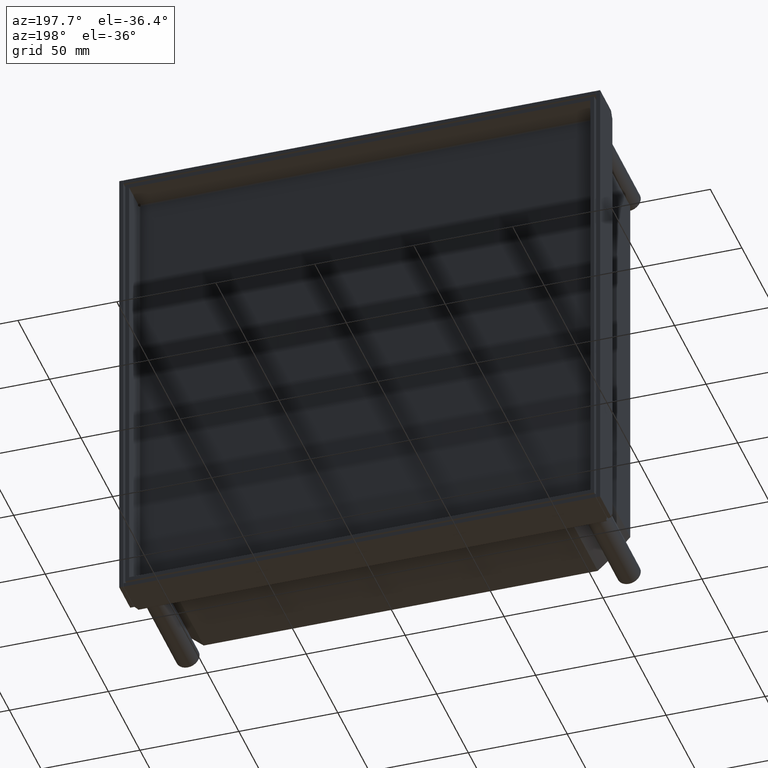
[diagram: clean part render]
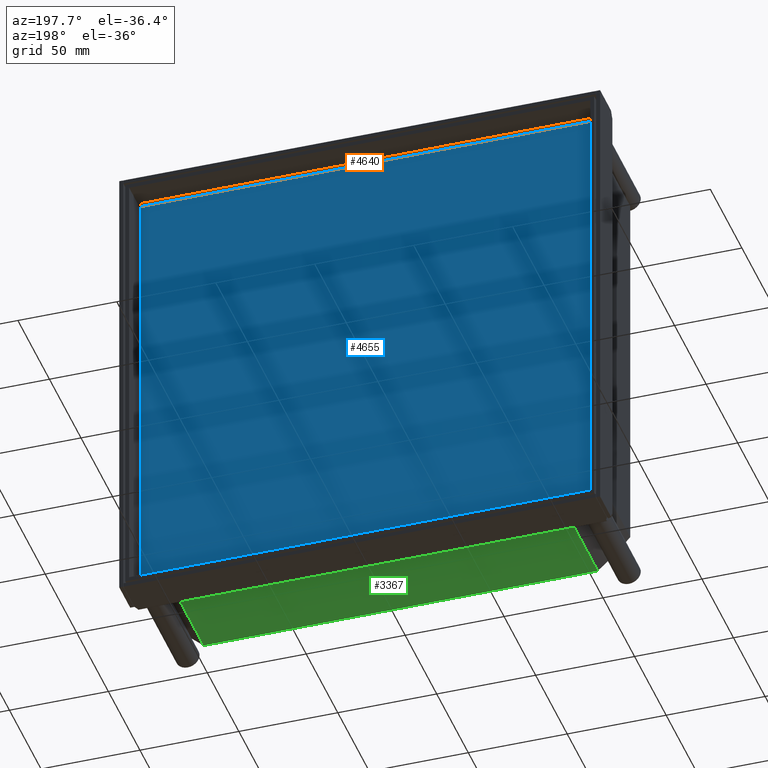
[diagram: same view with three faces highlighted in distinct colors, each labeled with its STEP entity id]
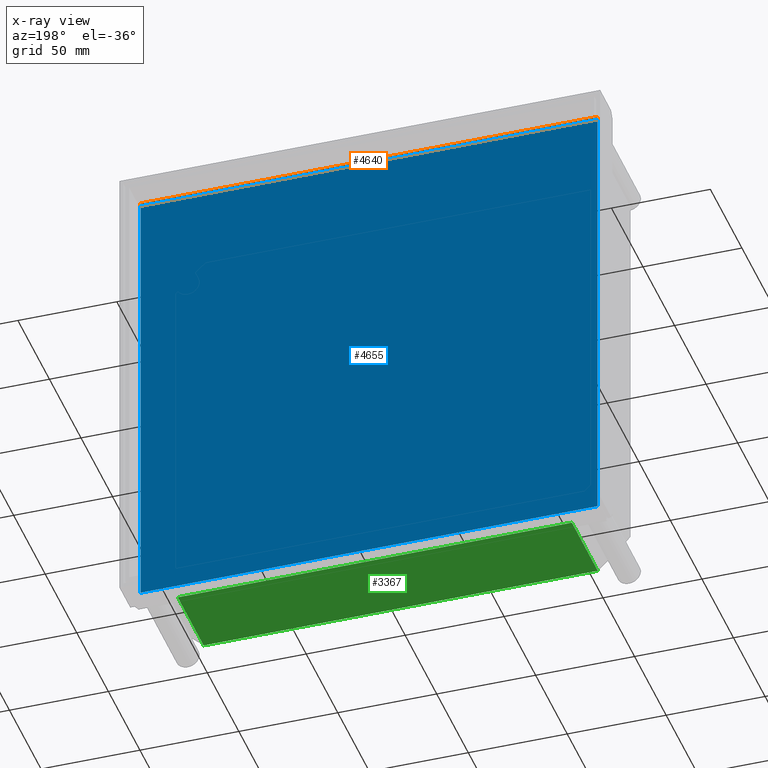
[diagram: x-ray of the same camera — body ghosted, the three highlighted faces saturated]
A machine part, auxiliary view with three faces highlighted in distinct colors.
The next image is the same camera in x-ray (body ghosted, the three faces saturated) — at least one of them is partly hidden behind the body in this view.
Their STEP definitions:

[orange] entity #4640 — the highlighted cylindrical surface (edge-blend (fillet) strip) has radius 1 mm, axis along (1, 0, 0).
#4050=DIRECTION('',(1.E0,0.E0,0.E0));
#4051=VECTOR('',#4050,2.31E2);
#4052=CARTESIAN_POINT('',(-1.155E2,2.E0,1.155E2));
#4053=LINE('',#4052,#4051);
#4054=DIRECTION('',(-1.E0,0.E0,0.E0));
#4055=VECTOR('',#4054,2.31E2);
#4056=CARTESIAN_POINT('',(1.155E2,3.E0,1.165E2));
#4057=LINE('',#4056,#4055);
#4193=CARTESIAN_POINT('',(1.155E2,3.E0,1.155E2));
#4194=DIRECTION('',(1.E0,0.E0,0.E0));
#4195=DIRECTION('',(0.E0,0.E0,1.E0));
#4196=AXIS2_PLACEMENT_3D('',#4193,#4194,#4195);
#4389=CARTESIAN_POINT('',(-1.155E2,3.E0,1.155E2));
#4390=DIRECTION('',(-1.E0,0.E0,0.E0));
#4391=DIRECTION('',(0.E0,-1.E0,0.E0));
#4392=AXIS2_PLACEMENT_3D('',#4389,#4390,#4391);
#4454=CARTESIAN_POINT('',(1.155E2,3.E0,1.165E2));
#4455=CARTESIAN_POINT('',(-1.155E2,3.E0,1.165E2));
#4456=VERTEX_POINT('',#4454);
#4457=VERTEX_POINT('',#4455);
#4462=CARTESIAN_POINT('',(-1.155E2,2.E0,1.155E2));
#4463=CARTESIAN_POINT('',(1.155E2,2.E0,1.155E2));
#4464=VERTEX_POINT('',#4462);
#4465=VERTEX_POINT('',#4463);
#4626=CARTESIAN_POINT('',(0.E0,3.E0,1.155E2));
#4627=DIRECTION('',(1.E0,0.E0,0.E0));
#4628=DIRECTION('',(0.E0,0.E0,1.E0));
#4629=AXIS2_PLACEMENT_3D('',#4626,#4627,#4628);
#4630=CYLINDRICAL_SURFACE('',#4629,1.E0);
#4632=ORIENTED_EDGE('',*,*,#4631,.T.);
#4634=ORIENTED_EDGE('',*,*,#4633,.F.);
#4635=ORIENTED_EDGE('',*,*,#4612,.T.);
#4637=ORIENTED_EDGE('',*,*,#4636,.F.);
#4638=EDGE_LOOP('',(#4632,#4634,#4635,#4637));
#4639=FACE_OUTER_BOUND('',#4638,.F.);
#4197=CIRCLE('',#4196,1.E0);
#4393=CIRCLE('',#4392,1.E0);
#4612=EDGE_CURVE('',#4456,#4457,#4057,.T.);
#4631=EDGE_CURVE('',#4464,#4465,#4053,.T.);
#4633=EDGE_CURVE('',#4456,#4465,#4197,.T.);
#4636=EDGE_CURVE('',#4464,#4457,#4393,.T.);
#4640=ADVANCED_FACE('',(#4639),#4630,.F.);

[blue] entity #4655 — the highlighted planar face has unit normal (0, 1, 0).
#4050=DIRECTION('',(1.E0,0.E0,0.E0));
#4051=VECTOR('',#4050,2.31E2);
#4052=CARTESIAN_POINT('',(-1.155E2,2.E0,1.155E2));
#4053=LINE('',#4052,#4051);
#4062=DIRECTION('',(-1.E0,0.E0,0.E0));
#4063=VECTOR('',#4062,2.31E2);
#4064=CARTESIAN_POINT('',(1.155E2,2.E0,-1.155E2));
#4065=LINE('',#4064,#4063);
#4166=DIRECTION('',(0.E0,0.E0,-1.E0));
#4167=VECTOR('',#4166,2.31E2);
#4168=CARTESIAN_POINT('',(1.155E2,2.E0,1.155E2));
#4169=LINE('',#4168,#4167);
#4346=DIRECTION('',(0.E0,0.E0,1.E0));
#4347=VECTOR('',#4346,2.31E2);
#4348=CARTESIAN_POINT('',(-1.155E2,2.E0,-1.155E2));
#4349=LINE('',#4348,#4347);
#4462=CARTESIAN_POINT('',(-1.155E2,2.E0,1.155E2));
#4463=CARTESIAN_POINT('',(1.155E2,2.E0,1.155E2));
#4464=VERTEX_POINT('',#4462);
#4465=VERTEX_POINT('',#4463);
#4466=CARTESIAN_POINT('',(1.155E2,2.E0,-1.155E2));
#4467=CARTESIAN_POINT('',(-1.155E2,2.E0,-1.155E2));
#4468=VERTEX_POINT('',#4466);
#4469=VERTEX_POINT('',#4467);
#4641=CARTESIAN_POINT('',(0.E0,2.E0,0.E0));
#4642=DIRECTION('',(0.E0,1.E0,0.E0));
#4643=DIRECTION('',(1.E0,0.E0,0.E0));
#4644=AXIS2_PLACEMENT_3D('',#4641,#4642,#4643);
#4645=PLANE('',#4644);
#4647=ORIENTED_EDGE('',*,*,#4646,.F.);
#4649=ORIENTED_EDGE('',*,*,#4648,.F.);
#4650=ORIENTED_EDGE('',*,*,#4631,.F.);
#4652=ORIENTED_EDGE('',*,*,#4651,.F.);
#4653=EDGE_LOOP('',(#4647,#4649,#4650,#4652));
#4654=FACE_OUTER_BOUND('',#4653,.F.);
#4631=EDGE_CURVE('',#4464,#4465,#4053,.T.);
#4646=EDGE_CURVE('',#4468,#4469,#4065,.T.);
#4648=EDGE_CURVE('',#4465,#4468,#4169,.T.);
#4651=EDGE_CURVE('',#4469,#4464,#4349,.T.);
#4655=ADVANCED_FACE('',(#4654),#4645,.T.);

[green] entity #3367 — the highlighted planar face has unit normal (0, 0, -1).
#3039=DIRECTION('',(1.E0,0.E0,0.E0));
#3040=VECTOR('',#3039,1.991582285521E2);
#3041=CARTESIAN_POINT('',(-9.957911427604E1,0.E0,-1.155E2));
#3042=LINE('',#3041,#3040);
#3129=DIRECTION('',(-1.E0,0.E0,0.E0));
#3130=VECTOR('',#3129,1.991582285521E2);
#3131=CARTESIAN_POINT('',(9.957911427604E1,-4.1E1,-1.155E2));
#3132=LINE('',#3131,#3130);
#3191=DIRECTION('',(0.E0,-1.E0,0.E0));
#3192=VECTOR('',#3191,4.1E1);
#3193=CARTESIAN_POINT('',(9.957911427604E1,0.E0,-1.155E2));
#3194=LINE('',#3193,#3192);
#3211=DIRECTION('',(0.E0,1.E0,0.E0));
#3212=VECTOR('',#3211,4.1E1);
#3213=CARTESIAN_POINT('',(-9.957911427604E1,-4.1E1,-1.155E2));
#3214=LINE('',#3213,#3212);
#3247=CARTESIAN_POINT('',(-9.957911427604E1,0.E0,-1.155E2));
#3248=CARTESIAN_POINT('',(9.957911427604E1,0.E0,-1.155E2));
#3249=VERTEX_POINT('',#3247);
#3250=VERTEX_POINT('',#3248);
#3279=CARTESIAN_POINT('',(9.957911427604E1,-4.1E1,-1.155E2));
#3280=CARTESIAN_POINT('',(-9.957911427604E1,-4.1E1,-1.155E2));
#3281=VERTEX_POINT('',#3279);
#3282=VERTEX_POINT('',#3280);
#3353=CARTESIAN_POINT('',(0.E0,0.E0,-1.155E2));
#3354=DIRECTION('',(0.E0,0.E0,-1.E0));
#3355=DIRECTION('',(-1.E0,0.E0,0.E0));
#3356=AXIS2_PLACEMENT_3D('',#3353,#3354,#3355);
#3357=PLANE('',#3356);
#3359=ORIENTED_EDGE('',*,*,#3358,.F.);
#3361=ORIENTED_EDGE('',*,*,#3360,.F.);
#3362=ORIENTED_EDGE('',*,*,#3316,.F.);
#3364=ORIENTED_EDGE('',*,*,#3363,.F.);
#3365=EDGE_LOOP('',(#3359,#3361,#3362,#3364));
#3366=FACE_OUTER_BOUND('',#3365,.F.);
#3316=EDGE_CURVE('',#3249,#3250,#3042,.T.);
#3358=EDGE_CURVE('',#3281,#3282,#3132,.T.);
#3360=EDGE_CURVE('',#3250,#3281,#3194,.T.);
#3363=EDGE_CURVE('',#3282,#3249,#3214,.T.);
#3367=ADVANCED_FACE('',(#3366),#3357,.T.);